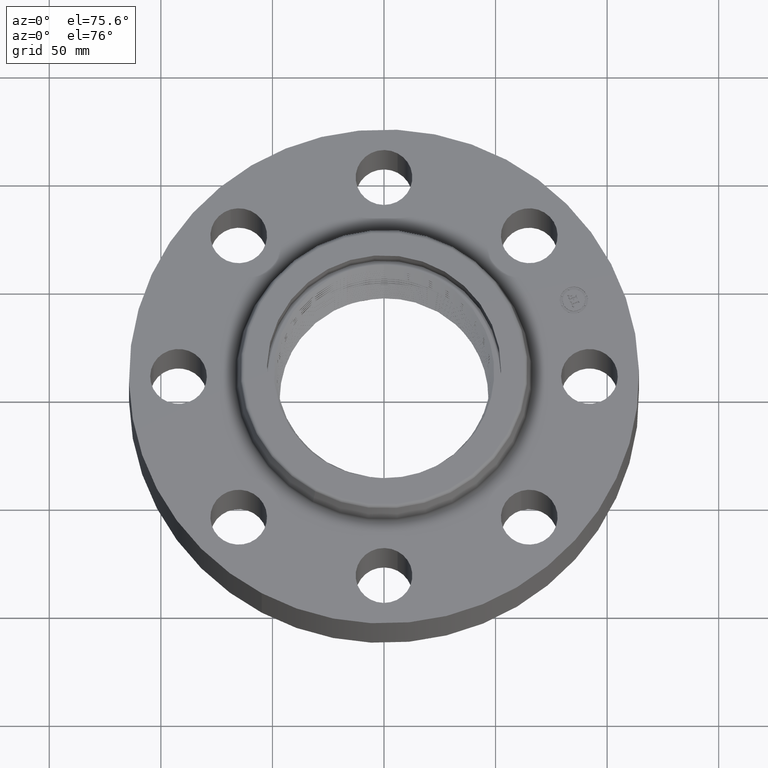
[diagram: clean part render]
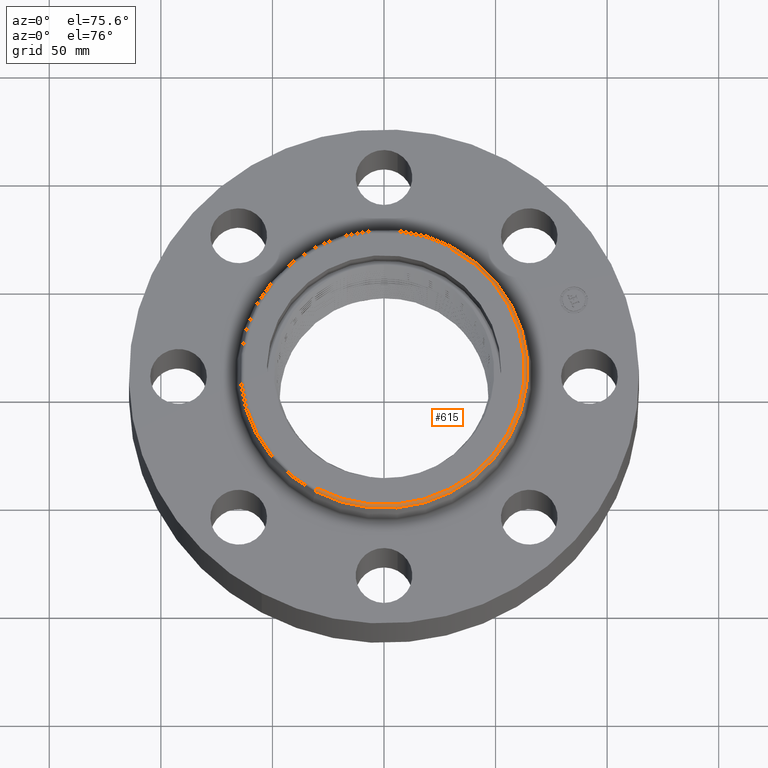
[diagram: same view with one face highlighted and labeled with its STEP entity id]
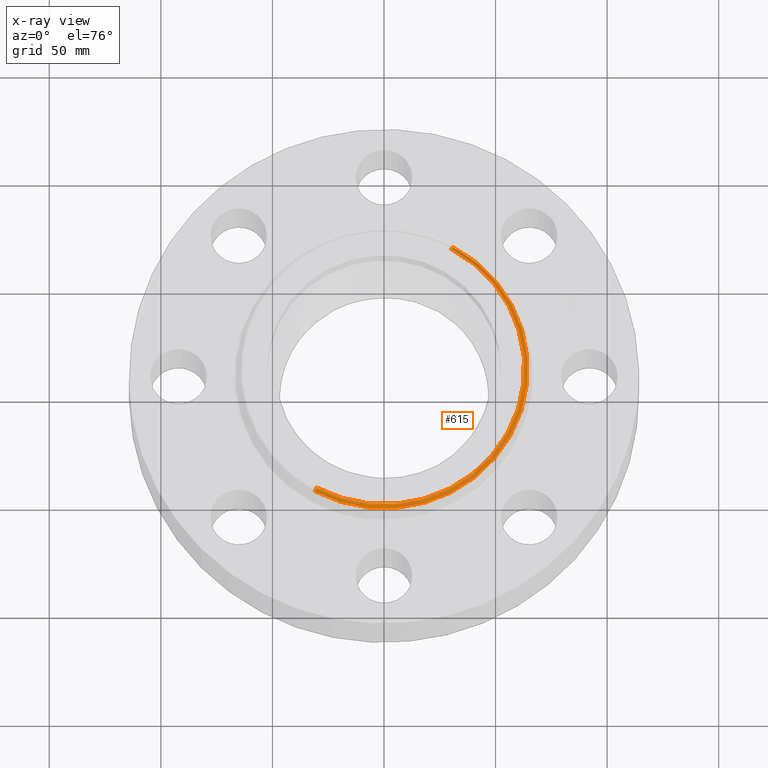
[diagram: x-ray of the same camera — body ghosted, the highlighted face saturated]
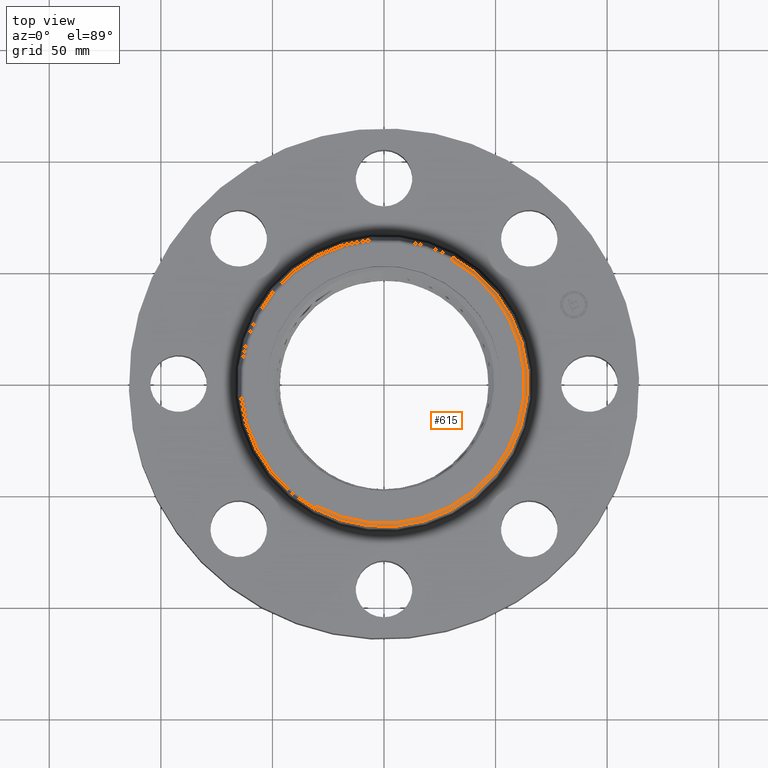
[diagram: same view with one face highlighted and labeled with its STEP entity id]
A machine part, auxiliary view. The second image highlights one B-rep face of the part: STEP entity #615.
The next image is the same camera in x-ray: the body ghosted, the highlighted face saturated — about 0% of this face is hidden behind the body in this view.
A second angle (top view) of the same face is appended — the face is thin or edge-on in the first view.
In plain terms, the highlighted toroidal blend (fillet) surface has major radius 62.8881 mm and minor (blend) radius 1.524 mm.
Its self-contained STEP definition (entity closure, byte-faithful):
#556=AXIS2_PLACEMENT_3D('Circle Axis2P3D',#554,#555,$) ;
#588=AXIS2_PLACEMENT_3D('Torus Axis2P3D',#585,#586,#587) ;
#592=AXIS2_PLACEMENT_3D('Circle Axis2P3D',#590,#591,$) ;
#599=AXIS2_PLACEMENT_3D('Circle Axis2P3D',#597,#598,$) ;
#606=AXIS2_PLACEMENT_3D('Circle Axis2P3D',#604,#605,$) ;
#551=CARTESIAN_POINT('Vertex',(1.21534344222,2.22467124864,1.89041889067)) ;
#554=CARTESIAN_POINT('Axis2P3D Location',(0.,0.,1.89041889067)) ;
#558=CARTESIAN_POINT('Vertex',(-1.21534344222,-2.22467124864,1.89041889067)) ;
#585=CARTESIAN_POINT('Axis2P3D Location',(0.,0.,1.88000000001)) ;
#590=CARTESIAN_POINT('Axis2P3D Location',(1.18701492297,2.17281624199,1.88000000001)) ;
#594=CARTESIAN_POINT('Vertex',(1.18701492297,2.17281624199,1.94000000001)) ;
#597=CARTESIAN_POINT('Axis2P3D Location',(0.,0.,1.94000000001)) ;
#601=CARTESIAN_POINT('Vertex',(-1.18701492297,-2.17281624199,1.94000000001)) ;
#604=CARTESIAN_POINT('Axis2P3D Location',(-1.18701492297,-2.17281624199,1.88000000001)) ;
#555=DIRECTION('Axis2P3D Direction',(0.,0.,-0.0393700787402)) ;
#586=DIRECTION('Axis2P3D Direction',(0.,0.,-0.0393700787402)) ;
#587=DIRECTION('Axis2P3D XDirection',(-0.0188750212049,-0.0345504945626,0.)) ;
#591=DIRECTION('Axis2P3D Direction',(-0.0345504945626,0.0188750212049,0.)) ;
#598=DIRECTION('Axis2P3D Direction',(0.,0.,-0.0393700787402)) ;
#605=DIRECTION('Axis2P3D Direction',(0.0345504945626,-0.0188750212049,0.)) ;
#610=ORIENTED_EDGE('',*,*,#560,.F.) ;
#611=ORIENTED_EDGE('',*,*,#596,.T.) ;
#612=ORIENTED_EDGE('',*,*,#603,.T.) ;
#613=ORIENTED_EDGE('',*,*,#608,.F.) ;
#615=ADVANCED_FACE('PartBody',(#614),#589,.T.) ;
#557=CIRCLE('generated circle',#556,2.53499937812) ;
#593=CIRCLE('generated circle',#592,0.0600000000002) ;
#600=CIRCLE('generated circle',#599,2.47591091294) ;
#607=CIRCLE('generated circle',#606,0.0600000000002) ;
#589=TOROIDAL_SURFACE('homeo Torus',#588,2.47591091294,0.0600000000002) ;
#560=EDGE_CURVE('',#552,#559,#557,.T.) ;
#596=EDGE_CURVE('',#552,#595,#593,.F.) ;
#603=EDGE_CURVE('',#595,#602,#600,.T.) ;
#608=EDGE_CURVE('',#559,#602,#607,.F.) ;
#609=EDGE_LOOP('',(#610,#611,#612,#613)) ;
#614=FACE_OUTER_BOUND('',#609,.T.) ;
#552=VERTEX_POINT('',#551) ;
#559=VERTEX_POINT('',#558) ;
#595=VERTEX_POINT('',#594) ;
#602=VERTEX_POINT('',#601) ;